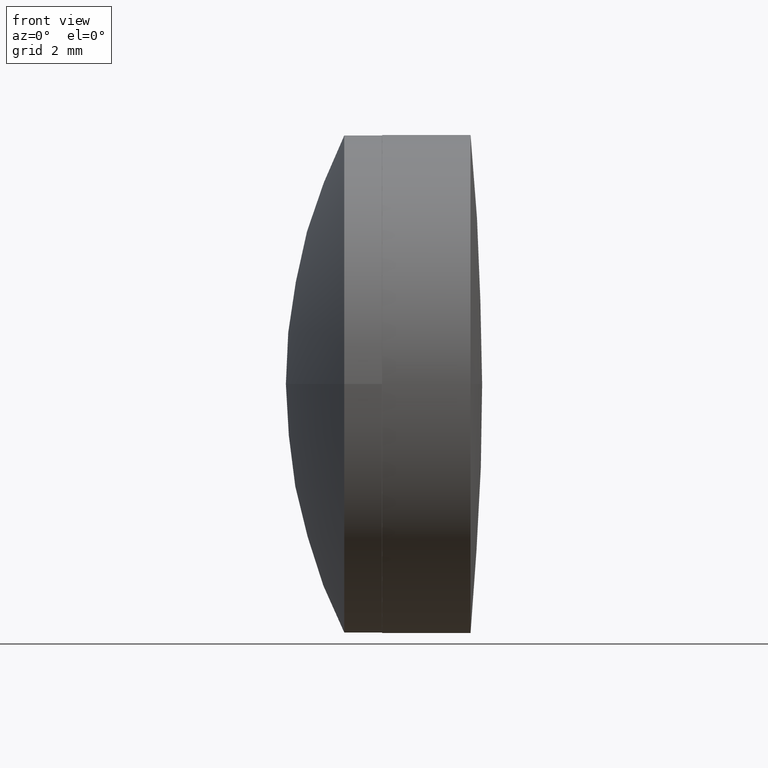
[diagram: clean part render]
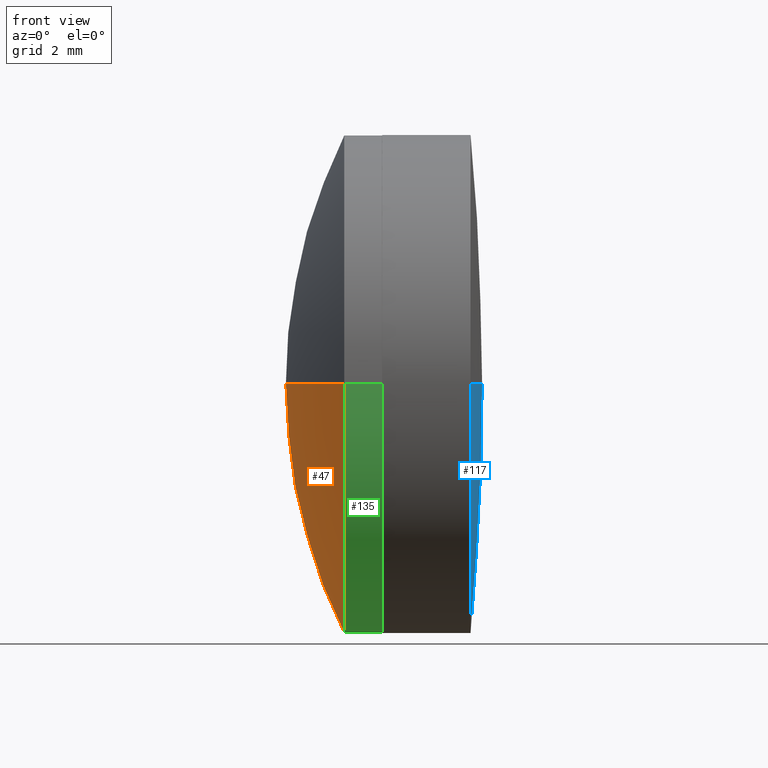
[diagram: same view with three faces highlighted in distinct colors, each labeled with its STEP entity id]
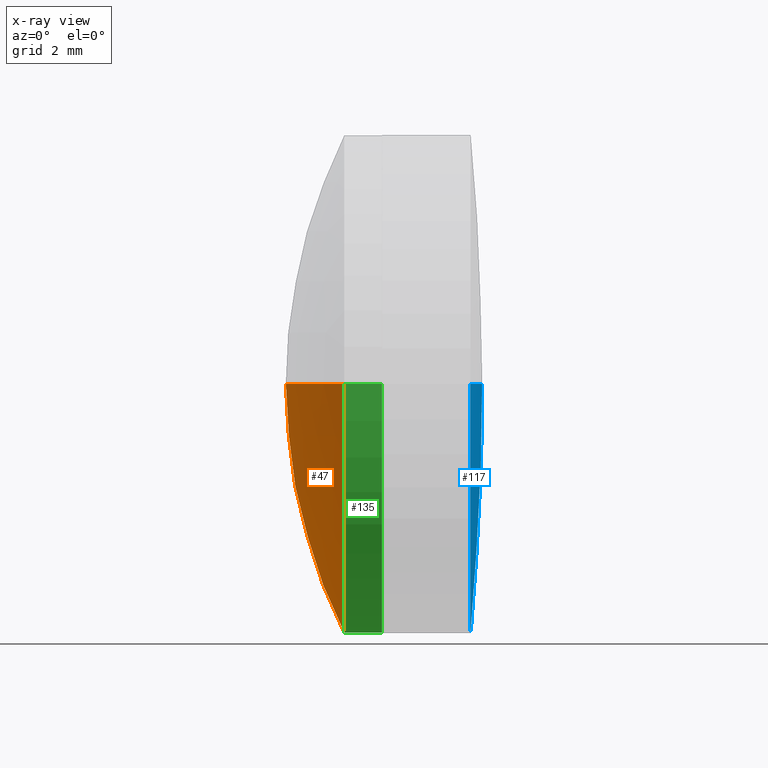
[diagram: x-ray of the same camera — body ghosted, the three highlighted faces saturated]
A machine part, front view with three faces highlighted in distinct colors.
The next image is the same camera in x-ray (body ghosted, the three faces saturated) — at least one of them is partly hidden behind the body in this view.
Their STEP definitions:

[orange] entity #47 — the highlighted spherical surface has radius 14.29 mm.
#34 = CIRCLE ( 'NONE', #84, 14.28999999999999027 ) ;
#40 = DIRECTION ( 'NONE',  ( 1.000000000000000000, 0.000000000000000000, 0.000000000000000000 ) ) ;
#47 = ADVANCED_FACE ( 'NONE', ( #430 ), #121, .T. ) ;
#84 = AXIS2_PLACEMENT_3D ( 'NONE', #287, #482, #40 ) ;
#92 = CARTESIAN_POINT ( 'NONE',  ( 12.28999999999998849, 0.000000000000000000, 0.000000000000000000 ) ) ;
#108 = ORIENTED_EDGE ( 'NONE', *, *, #180, .F. ) ;
#121 = SPHERICAL_SURFACE ( 'NONE', #626, 14.28999999999999027 ) ;
#132 = VERTEX_POINT ( 'NONE', #526 ) ;
#138 = CARTESIAN_POINT ( 'NONE',  ( -0.5116248968636686323, 2.675969348662028730E-14, 0.000000000000000000 ) ) ;
#142 = DIRECTION ( 'NONE',  ( -2.561107494060249109E-16, -1.000000000000000000, 0.000000000000000000 ) ) ;
#180 = EDGE_CURVE ( 'NONE', #410, #132, #34, .T. ) ;
#236 = EDGE_CURVE ( 'NONE', #453, #132, #642, .T. ) ;
#244 = DIRECTION ( 'NONE',  ( 3.081136046910056722E-32, 1.224646799147353207E-16, -1.000000000000000000 ) ) ;
#249 = EDGE_CURVE ( 'NONE', #410, #453, #613, .T. ) ;
#279 = DIRECTION ( 'NONE',  ( 0.000000000000000000, 0.000000000000000000, -1.000000000000000000 ) ) ;
#282 = EDGE_LOOP ( 'NONE', ( #317, #468, #108 ) ) ;
#287 = CARTESIAN_POINT ( 'NONE',  ( 12.28999999999998849, 0.000000000000000000, 0.000000000000000000 ) ) ;
#317 = ORIENTED_EDGE ( 'NONE', *, *, #249, .T. ) ;
#345 = DIRECTION ( 'NONE',  ( -1.000000000000000000, 2.515938513092316790E-16, -0.000000000000000000 ) ) ;
#380 = CARTESIAN_POINT ( 'NONE',  ( -0.5116248968636704086, -6.349999999999992539, -7.776507174585689205E-16 ) ) ;
#397 = AXIS2_PLACEMENT_3D ( 'NONE', #92, #244, #446 ) ;
#410 = VERTEX_POINT ( 'NONE', #479 ) ;
#430 = FACE_OUTER_BOUND ( 'NONE', #282, .T. ) ;
#446 = DIRECTION ( 'NONE',  ( 0.000000000000000000, 1.000000000000000000, 1.224646799147353207E-16 ) ) ;
#453 = VERTEX_POINT ( 'NONE', #380 ) ;
#468 = ORIENTED_EDGE ( 'NONE', *, *, #236, .T. ) ;
#479 = CARTESIAN_POINT ( 'NONE',  ( -0.5116248968636670780, 6.350000000000022737, 0.000000000000000000 ) ) ;
#482 = DIRECTION ( 'NONE',  ( 0.000000000000000000, 0.000000000000000000, 1.000000000000000000 ) ) ;
#514 = CARTESIAN_POINT ( 'NONE',  ( 12.28999999999998849, 0.000000000000000000, 0.000000000000000000 ) ) ;
#522 = AXIS2_PLACEMENT_3D ( 'NONE', #138, #345, #142 ) ;
#526 = CARTESIAN_POINT ( 'NONE',  ( -2.000000000000001776, 4.470286273199701274E-15, 0.000000000000000000 ) ) ;
#566 = DIRECTION ( 'NONE',  ( 2.427884501017226571E-16, 1.000000000000000000, 0.000000000000000000 ) ) ;
#613 = CIRCLE ( 'NONE', #522, 6.349999999999993427 ) ;
#626 = AXIS2_PLACEMENT_3D ( 'NONE', #514, #279, #566 ) ;
#642 = CIRCLE ( 'NONE', #397, 14.28999999999999027 ) ;

[blue] entity #117 — the highlighted spherical surface has radius 68.32 mm.
#25 = VERTEX_POINT ( 'NONE', #234 ) ;
#50 = AXIS2_PLACEMENT_3D ( 'NONE', #181, #77, #334 ) ;
#73 = CARTESIAN_POINT ( 'NONE',  ( -68.31999999999999318, 0.000000000000000000, 0.000000000000000000 ) ) ;
#76 = ORIENTED_EDGE ( 'NONE', *, *, #546, .F. ) ;
#77 = DIRECTION ( 'NONE',  ( -1.000000000000000000, -0.000000000000000000, -0.000000000000000000 ) ) ;
#78 = FACE_OUTER_BOUND ( 'NONE', #561, .T. ) ;
#117 = ADVANCED_FACE ( 'NONE', ( #78 ), #325, .T. ) ;
#120 = CARTESIAN_POINT ( 'NONE',  ( 0.000000000000000000, 4.183393465887357773E-15, 0.000000000000000000 ) ) ;
#170 = DIRECTION ( 'NONE',  ( -0.000000000000000000, 0.000000000000000000, -1.000000000000000000 ) ) ;
#181 = CARTESIAN_POINT ( 'NONE',  ( -0.2951002634660471191, 0.000000000000000000, 0.000000000000000000 ) ) ;
#185 = DIRECTION ( 'NONE',  ( -1.000000000000000000, -0.000000000000000000, -0.000000000000000000 ) ) ;
#209 = CARTESIAN_POINT ( 'NONE',  ( -0.2951002634660471191, -6.343139272828758557, -7.768105207015609228E-16 ) ) ;
#216 = AXIS2_PLACEMENT_3D ( 'NONE', #483, #422, #623 ) ;
#234 = CARTESIAN_POINT ( 'NONE',  ( -0.2951002634660471191, 7.768105207015596409E-16, -6.343139272828748787 ) ) ;
#238 = AXIS2_PLACEMENT_3D ( 'NONE', #573, #185, #579 ) ;
#247 = AXIS2_PLACEMENT_3D ( 'NONE', #73, #376, #567 ) ;
#261 = ORIENTED_EDGE ( 'NONE', *, *, #298, .F. ) ;
#270 = CIRCLE ( 'NONE', #238, 6.343139272828748787 ) ;
#298 = EDGE_CURVE ( 'NONE', #416, #407, #425, .T. ) ;
#322 = VERTEX_POINT ( 'NONE', #209 ) ;
#325 = SPHERICAL_SURFACE ( 'NONE', #475, 68.31999999999999318 ) ;
#334 = DIRECTION ( 'NONE',  ( 0.000000000000000000, 0.000000000000000000, 1.000000000000000000 ) ) ;
#376 = DIRECTION ( 'NONE',  ( -0.000000000000000000, 0.000000000000000000, 1.000000000000000000 ) ) ;
#379 = ORIENTED_EDGE ( 'NONE', *, *, #465, .F. ) ;
#386 = CIRCLE ( 'NONE', #50, 6.343139272828748787 ) ;
#407 = VERTEX_POINT ( 'NONE', #431 ) ;
#416 = VERTEX_POINT ( 'NONE', #120 ) ;
#422 = DIRECTION ( 'NONE',  ( 0.000000000000000000, 1.224646799147353207E-16, -1.000000000000000000 ) ) ;
#425 = CIRCLE ( 'NONE', #247, 68.31999999999999318 ) ;
#428 = DIRECTION ( 'NONE',  ( 0.000000000000000000, 1.000000000000000000, 0.000000000000000000 ) ) ;
#431 = CARTESIAN_POINT ( 'NONE',  ( -0.2951002634660471191, 6.343139272828758557, 0.000000000000000000 ) ) ;
#465 = EDGE_CURVE ( 'NONE', #25, #322, #386, .T. ) ;
#470 = CARTESIAN_POINT ( 'NONE',  ( -68.31999999999999318, 0.000000000000000000, 0.000000000000000000 ) ) ;
#475 = AXIS2_PLACEMENT_3D ( 'NONE', #470, #170, #428 ) ;
#483 = CARTESIAN_POINT ( 'NONE',  ( -68.31999999999999318, 0.000000000000000000, 0.000000000000000000 ) ) ;
#546 = EDGE_CURVE ( 'NONE', #407, #25, #270, .T. ) ;
#559 = ORIENTED_EDGE ( 'NONE', *, *, #592, .T. ) ;
#561 = EDGE_LOOP ( 'NONE', ( #261, #559, #379, #76 ) ) ;
#567 = DIRECTION ( 'NONE',  ( 1.000000000000000000, 0.000000000000000000, 0.000000000000000000 ) ) ;
#573 = CARTESIAN_POINT ( 'NONE',  ( -0.2951002634660471191, 0.000000000000000000, 0.000000000000000000 ) ) ;
#579 = DIRECTION ( 'NONE',  ( 0.000000000000000000, 0.000000000000000000, 1.000000000000000000 ) ) ;
#592 = EDGE_CURVE ( 'NONE', #416, #322, #598, .T. ) ;
#598 = CIRCLE ( 'NONE', #216, 68.31999999999999318 ) ;
#623 = DIRECTION ( 'NONE',  ( 0.000000000000000000, 1.000000000000000000, 1.224646799147353207E-16 ) ) ;

[green] entity #135 — the highlighted cylindrical surface (partial cylindrical patch) has radius 6.35 mm, axis along (-1, 0, 0).
#31 = CARTESIAN_POINT ( 'NONE',  ( -2.000000000000007105, -6.349999999999966782, 0.000000000000000000 ) ) ;
#46 = CARTESIAN_POINT ( 'NONE',  ( -2.000000000000003553, 6.350000000000020961, 7.776507174585685260E-16 ) ) ;
#60 = CIRCLE ( 'NONE', #137, 6.349999999999994316 ) ;
#66 = ORIENTED_EDGE ( 'NONE', *, *, #367, .T. ) ;
#71 = VERTEX_POINT ( 'NONE', #130 ) ;
#130 = CARTESIAN_POINT ( 'NONE',  ( 0.4471741201639202190, 6.350000000000020961, 0.000000000000000000 ) ) ;
#135 = ADVANCED_FACE ( 'NONE', ( #327 ), #331, .T. ) ;
#137 = AXIS2_PLACEMENT_3D ( 'NONE', #412, #556, #478 ) ;
#138 = CARTESIAN_POINT ( 'NONE',  ( -0.5116248968636686323, 2.675969348662028730E-14, 0.000000000000000000 ) ) ;
#142 = DIRECTION ( 'NONE',  ( -2.561107494060249109E-16, -1.000000000000000000, 0.000000000000000000 ) ) ;
#176 = DIRECTION ( 'NONE',  ( -1.000000000000000000, 2.515938513092316790E-16, -0.000000000000000000 ) ) ;
#194 = AXIS2_PLACEMENT_3D ( 'NONE', #426, #176, #519 ) ;
#196 = LINE ( 'NONE', #46, #552 ) ;
#232 = EDGE_CURVE ( 'NONE', #71, #410, #196, .T. ) ;
#249 = EDGE_CURVE ( 'NONE', #410, #453, #613, .T. ) ;
#266 = ORIENTED_EDGE ( 'NONE', *, *, #347, .T. ) ;
#271 = EDGE_LOOP ( 'NONE', ( #551, #266, #66, #477 ) ) ;
#283 = DIRECTION ( 'NONE',  ( -1.000000000000000000, 2.515938513092316790E-16, -0.000000000000000000 ) ) ;
#301 = DIRECTION ( 'NONE',  ( -1.000000000000000000, 2.515938513092316790E-16, -0.000000000000000000 ) ) ;
#327 = FACE_OUTER_BOUND ( 'NONE', #271, .T. ) ;
#331 = CYLINDRICAL_SURFACE ( 'NONE', #194, 6.349999999999993427 ) ;
#332 = VECTOR ( 'NONE', #283, 1000.000000000000000 ) ;
#345 = DIRECTION ( 'NONE',  ( -1.000000000000000000, 2.515938513092316790E-16, -0.000000000000000000 ) ) ;
#347 = EDGE_CURVE ( 'NONE', #71, #605, #60, .T. ) ;
#367 = EDGE_CURVE ( 'NONE', #605, #453, #518, .T. ) ;
#380 = CARTESIAN_POINT ( 'NONE',  ( -0.5116248968636704086, -6.349999999999992539, -7.776507174585689205E-16 ) ) ;
#393 = CARTESIAN_POINT ( 'NONE',  ( 0.4471741201639169438, -6.349999999999996092, -7.776507174585685260E-16 ) ) ;
#410 = VERTEX_POINT ( 'NONE', #479 ) ;
#412 = CARTESIAN_POINT ( 'NONE',  ( 0.4471741201639185537, 2.651846554929480922E-14, 0.000000000000000000 ) ) ;
#426 = CARTESIAN_POINT ( 'NONE',  ( -2.000000000000005329, 2.713415951101113115E-14, 0.000000000000000000 ) ) ;
#453 = VERTEX_POINT ( 'NONE', #380 ) ;
#477 = ORIENTED_EDGE ( 'NONE', *, *, #249, .F. ) ;
#478 = DIRECTION ( 'NONE',  ( -2.475737244258240576E-16, -1.000000000000000000, 0.000000000000000000 ) ) ;
#479 = CARTESIAN_POINT ( 'NONE',  ( -0.5116248968636670780, 6.350000000000022737, 0.000000000000000000 ) ) ;
#518 = LINE ( 'NONE', #31, #332 ) ;
#519 = DIRECTION ( 'NONE',  ( -2.731847993664266177E-16, -1.000000000000000000, 0.000000000000000000 ) ) ;
#522 = AXIS2_PLACEMENT_3D ( 'NONE', #138, #345, #142 ) ;
#551 = ORIENTED_EDGE ( 'NONE', *, *, #232, .F. ) ;
#552 = VECTOR ( 'NONE', #301, 1000.000000000000000 ) ;
#556 = DIRECTION ( 'NONE',  ( -1.000000000000000000, 2.515938513092316790E-16, -0.000000000000000000 ) ) ;
#605 = VERTEX_POINT ( 'NONE', #393 ) ;
#613 = CIRCLE ( 'NONE', #522, 6.349999999999993427 ) ;